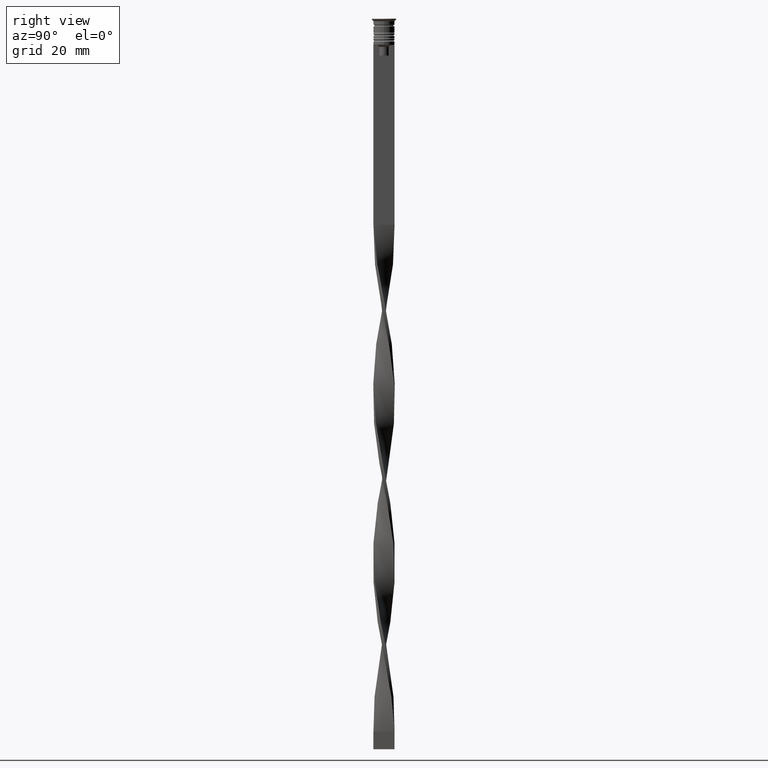
[diagram: clean part render]
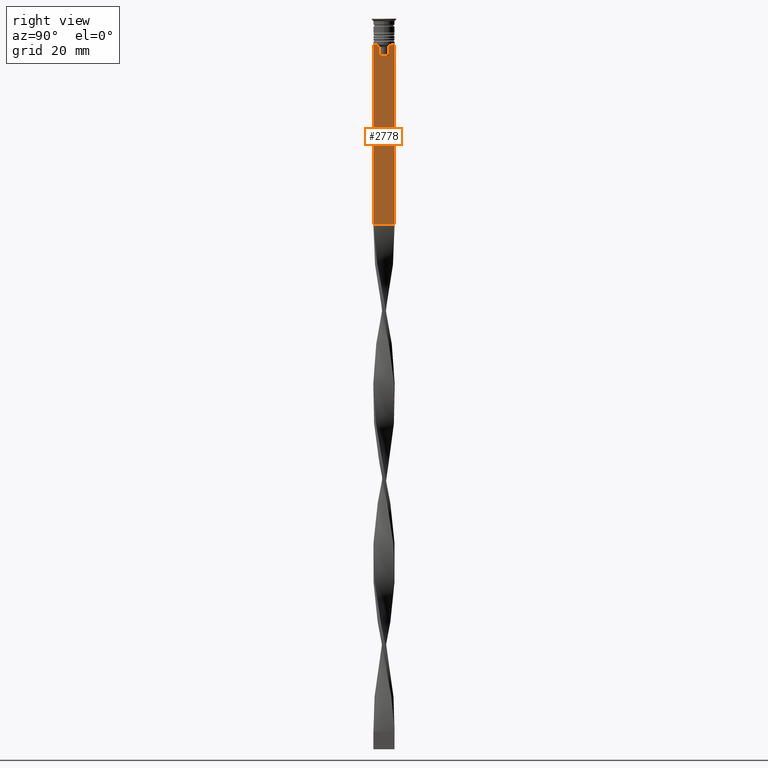
[diagram: same view with one face highlighted and labeled with its STEP entity id]
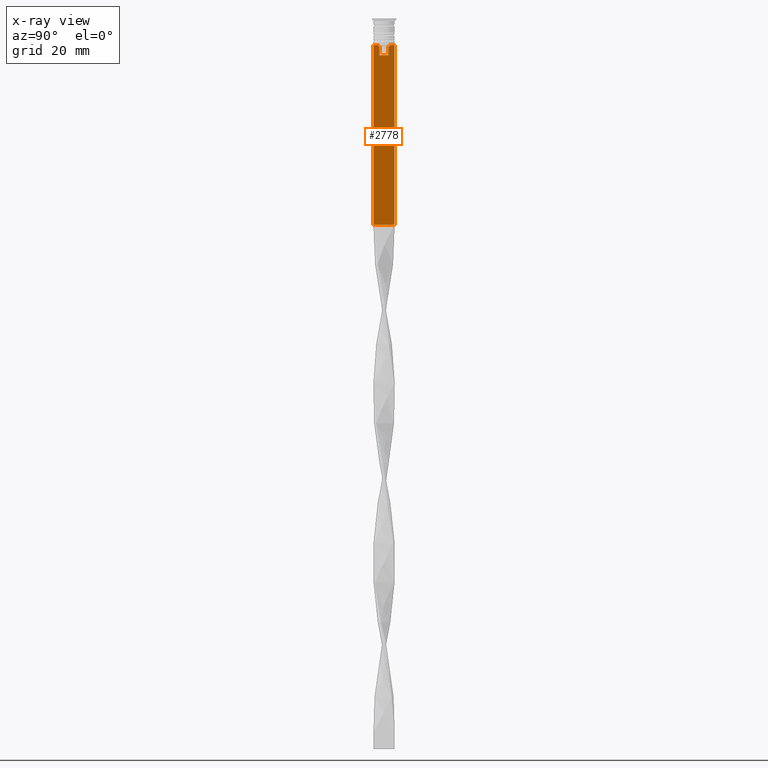
[diagram: x-ray of the same camera — body ghosted, the highlighted face saturated]
A machine part, right view. The second image highlights one B-rep face of the part: STEP entity #2778.
The next image is the same camera in x-ray: the body ghosted, the highlighted face saturated — about 0% of this face is hidden behind the body in this view.
In plain terms, the highlighted planar face has unit normal (-1, 0, 0).
Its self-contained STEP definition (entity closure, byte-faithful):
#39 = ORIENTED_EDGE ( 'NONE', *, *, #2444, .T. ) ;
#52 = DIRECTION ( 'NONE',  ( 0.000000000000000000, 0.000000000000000000, 1.000000000000000000 ) ) ;
#113 = EDGE_CURVE ( 'NONE', #428, #2605, #3611, .T. ) ;
#122 = ORIENTED_EDGE ( 'NONE', *, *, #1128, .F. ) ;
#131 = EDGE_CURVE ( 'NONE', #2325, #3174, #1012, .T. ) ;
#177 = CARTESIAN_POINT ( 'NONE',  ( 0.4999999999999998890, 1.833030277982335754, -7.500000000000000000 ) ) ;
#192 = CARTESIAN_POINT ( 'NONE',  ( 0.4999999999999998890, -1.307669683062199439, -8.000000000000000000 ) ) ;
#223 = CARTESIAN_POINT ( 'NONE',  ( 0.4999999999999998890, -3.000000000000000000, -7.500000000000000000 ) ) ;
#231 = CARTESIAN_POINT ( 'NONE',  ( 0.4999999999999998890, -3.000000000000000000, -7.500000000000000000 ) ) ;
#264 = DIRECTION ( 'NONE',  ( 0.000000000000000000, -1.000000000000000000, 0.000000000000000000 ) ) ;
#266 = EDGE_CURVE ( 'NONE', #3516, #2512, #2772, .T. ) ;
#270 = ORIENTED_EDGE ( 'NONE', *, *, #1379, .T. ) ;
#277 = CARTESIAN_POINT ( 'NONE',  ( 0.4999999999999998890, 1.399999999999997691, -10.49999999999999822 ) ) ;
#363 = LINE ( 'NONE', #2715, #3352 ) ;
#396 = VECTOR ( 'NONE', #1098, 1000.000000000000000 ) ;
#410 = CARTESIAN_POINT ( 'NONE',  ( 0.4999999999999998890, -1.307669683062199439, -10.49999999999999822 ) ) ;
#411 = EDGE_CURVE ( 'NONE', #2961, #1949, #1431, .T. ) ;
#416 = CARTESIAN_POINT ( 'NONE',  ( 0.4999999999999998890, 2.856571371417139904, -7.500000000000000000 ) ) ;
#428 = VERTEX_POINT ( 'NONE', #2236 ) ;
#530 = ORIENTED_EDGE ( 'NONE', *, *, #3616, .T. ) ;
#537 = ORIENTED_EDGE ( 'NONE', *, *, #1868, .T. ) ;
#560 = CARTESIAN_POINT ( 'NONE',  ( 0.4999999999999998890, 1.307669683062199439, -10.49999999999999822 ) ) ;
#651 = DIRECTION ( 'NONE',  ( 0.000000000000000000, -1.000000000000000000, 0.000000000000000000 ) ) ;
#722 = CARTESIAN_POINT ( 'NONE',  ( 0.4999999999999998890, -3.000000000000000000, -1.417237469701779329 ) ) ;
#777 = CARTESIAN_POINT ( 'NONE',  ( 0.4999999999999998890, 1.484355510416485835, -7.834966642958598015 ) ) ;
#855 = LINE ( 'NONE', #277, #2916 ) ;
#864 = VECTOR ( 'NONE', #264, 1000.000000000000000 ) ;
#916 = VERTEX_POINT ( 'NONE', #1748 ) ;
#993 = VECTOR ( 'NONE', #1862, 1000.000000000000000 ) ;
#1012 = LINE ( 'NONE', #3577, #993 ) ;
#1066 = CARTESIAN_POINT ( 'NONE',  ( 0.4999999999999998890, 1.659046061654642967, -7.667851756010362507 ) ) ;
#1098 = DIRECTION ( 'NONE',  ( 0.000000000000000000, -1.000000000000000000, 0.000000000000000000 ) ) ;
#1118 = VECTOR ( 'NONE', #2178, 1000.000000000000000 ) ;
#1124 = CARTESIAN_POINT ( 'NONE',  ( 0.4999999999999998890, -1.659011726860414093, -7.667884880598472286 ) ) ;
#1128 = EDGE_CURVE ( 'NONE', #3516, #2709, #363, .T. ) ;
#1207 = PLANE ( 'NONE',  #1604 ) ;
#1217 = ORIENTED_EDGE ( 'NONE', *, *, #131, .T. ) ;
#1233 = DIRECTION ( 'NONE',  ( 0.000000000000000000, 0.000000000000000000, -1.000000000000000000 ) ) ;
#1251 = CARTESIAN_POINT ( 'NONE',  ( 0.4999999999999998890, -3.000000000000000000, -7.500000000000000000 ) ) ;
#1255 = CARTESIAN_POINT ( 'NONE',  ( 0.4999999999999998890, -3.000000000000000000, -7.500000000000000000 ) ) ;
#1305 = LINE ( 'NONE', #722, #3161 ) ;
#1306 = LINE ( 'NONE', #2453, #1118 ) ;
#1370 = ORIENTED_EDGE ( 'NONE', *, *, #3037, .T. ) ;
#1379 = EDGE_CURVE ( 'NONE', #1949, #2877, #1306, .T. ) ;
#1431 = B_SPLINE_CURVE_WITH_KNOTS ( 'NONE', 3,
 ( #3354, #1066, #777, #2837 ),
 .UNSPECIFIED., .F., .F.,
 ( 4, 4 ),
 ( 0.003278537493109848298, 0.004003794023484941178 ),
 .UNSPECIFIED. ) ;
#1518 = LINE ( 'NONE', #1251, #3585 ) ;
#1536 = VECTOR ( 'NONE', #2130, 1000.000000000000000 ) ;
#1589 = CARTESIAN_POINT ( 'NONE',  ( 0.4999999999999998890, -3.000000000000000000, -58.50000000000000000 ) ) ;
#1604 = AXIS2_PLACEMENT_3D ( 'NONE', #3205, #3433, #52 ) ;
#1738 = FACE_OUTER_BOUND ( 'NONE', #3149, .T. ) ;
#1748 = CARTESIAN_POINT ( 'NONE',  ( 0.4999999999999998890, -3.000000000000000000, -58.50000000000000000 ) ) ;
#1791 = ORIENTED_EDGE ( 'NONE', *, *, #411, .T. ) ;
#1819 = LINE ( 'NONE', #1589, #2733 ) ;
#1862 = DIRECTION ( 'NONE',  ( -0.000000000000000000, -0.000000000000000000, 1.000000000000000000 ) ) ;
#1868 = EDGE_CURVE ( 'NONE', #2877, #2325, #855, .T. ) ;
#1949 = VERTEX_POINT ( 'NONE', #3207 ) ;
#1976 = CARTESIAN_POINT ( 'NONE',  ( 0.4999999999999998890, 3.000000000000000000, -58.50000000000000000 ) ) ;
#2014 = DIRECTION ( 'NONE',  ( 0.000000000000000000, -1.000000000000000000, 0.000000000000000000 ) ) ;
#2130 = DIRECTION ( 'NONE',  ( 0.000000000000000000, -1.000000000000000000, 0.000000000000000000 ) ) ;
#2177 = DIRECTION ( 'NONE',  ( 0.000000000000000000, 0.000000000000000000, -1.000000000000000000 ) ) ;
#2178 = DIRECTION ( 'NONE',  ( 0.000000000000000000, 0.000000000000000000, -1.000000000000000000 ) ) ;
#2196 = CARTESIAN_POINT ( 'NONE',  ( 0.4999999999999998890, 3.000000000000000000, -7.500000000000000000 ) ) ;
#2236 = CARTESIAN_POINT ( 'NONE',  ( 0.4999999999999998890, -2.856571371417139904, -7.500000000000000000 ) ) ;
#2321 = VERTEX_POINT ( 'NONE', #3567 ) ;
#2325 = VERTEX_POINT ( 'NONE', #410 ) ;
#2367 = ORIENTED_EDGE ( 'NONE', *, *, #2412, .T. ) ;
#2398 = EDGE_CURVE ( 'NONE', #2321, #428, #1518, .T. ) ;
#2412 = EDGE_CURVE ( 'NONE', #2605, #916, #1305, .T. ) ;
#2444 = EDGE_CURVE ( 'NONE', #916, #2709, #1819, .T. ) ;
#2453 = CARTESIAN_POINT ( 'NONE',  ( 0.4999999999999998890, 1.307669683062199439, 0.000000000000000000 ) ) ;
#2493 = CARTESIAN_POINT ( 'NONE',  ( 0.4999999999999998890, -1.484307477388859153, -7.835011508197190722 ) ) ;
#2512 = VERTEX_POINT ( 'NONE', #416 ) ;
#2584 = CARTESIAN_POINT ( 'NONE',  ( 0.4999999999999998890, -1.833030277982335754, -7.500000000000000000 ) ) ;
#2605 = VERTEX_POINT ( 'NONE', #223 ) ;
#2709 = VERTEX_POINT ( 'NONE', #1976 ) ;
#2715 = CARTESIAN_POINT ( 'NONE',  ( 0.4999999999999998890, 3.000000000000000000, -1.417237469701779329 ) ) ;
#2733 = VECTOR ( 'NONE', #2986, 1000.000000000000000 ) ;
#2772 = LINE ( 'NONE', #3647, #864 ) ;
#2778 = ADVANCED_FACE ( 'NONE', ( #1738 ), #1207, .F. ) ;
#2814 = ORIENTED_EDGE ( 'NONE', *, *, #2398, .T. ) ;
#2837 = CARTESIAN_POINT ( 'NONE',  ( 0.4999999999999998890, 1.307669683062199439, -8.000000000000000000 ) ) ;
#2877 = VERTEX_POINT ( 'NONE', #560 ) ;
#2916 = VECTOR ( 'NONE', #2014, 1000.000000000000000 ) ;
#2934 = B_SPLINE_CURVE_WITH_KNOTS ( 'NONE', 3,
 ( #192, #2493, #1124, #2584 ),
 .UNSPECIFIED., .F., .F.,
 ( 4, 4 ),
 ( 0.007225659348748082224, 0.007950554640278054835 ),
 .UNSPECIFIED. ) ;
#2961 = VERTEX_POINT ( 'NONE', #177 ) ;
#2986 = DIRECTION ( 'NONE',  ( 0.000000000000000000, 1.000000000000000000, 0.000000000000000000 ) ) ;
#3037 = EDGE_CURVE ( 'NONE', #3174, #2321, #2934, .T. ) ;
#3096 = LINE ( 'NONE', #231, #396 ) ;
#3149 = EDGE_LOOP ( 'NONE', ( #530, #1791, #270, #537, #1217, #1370, #2814, #3208, #2367, #39, #122, #3409 ) ) ;
#3161 = VECTOR ( 'NONE', #2177, 1000.000000000000000 ) ;
#3174 = VERTEX_POINT ( 'NONE', #3201 ) ;
#3201 = CARTESIAN_POINT ( 'NONE',  ( 0.4999999999999998890, -1.307669683062199439, -8.000000000000000000 ) ) ;
#3205 = CARTESIAN_POINT ( 'NONE',  ( 0.4999999999999998890, -3.000000000000000000, -1.417237469701779329 ) ) ;
#3207 = CARTESIAN_POINT ( 'NONE',  ( 0.4999999999999998890, 1.307669683062199439, -8.000000000000000000 ) ) ;
#3208 = ORIENTED_EDGE ( 'NONE', *, *, #113, .T. ) ;
#3352 = VECTOR ( 'NONE', #1233, 1000.000000000000000 ) ;
#3354 = CARTESIAN_POINT ( 'NONE',  ( 0.4999999999999998890, 1.833030277982335754, -7.500000000000000000 ) ) ;
#3409 = ORIENTED_EDGE ( 'NONE', *, *, #266, .T. ) ;
#3433 = DIRECTION ( 'NONE',  ( -1.000000000000000000, 0.000000000000000000, 0.000000000000000000 ) ) ;
#3516 = VERTEX_POINT ( 'NONE', #2196 ) ;
#3567 = CARTESIAN_POINT ( 'NONE',  ( 0.4999999999999998890, -1.833030277982335754, -7.500000000000000000 ) ) ;
#3577 = CARTESIAN_POINT ( 'NONE',  ( 0.4999999999999998890, -1.307669683062199439, 0.000000000000000000 ) ) ;
#3585 = VECTOR ( 'NONE', #651, 1000.000000000000000 ) ;
#3611 = LINE ( 'NONE', #1255, #1536 ) ;
#3616 = EDGE_CURVE ( 'NONE', #2512, #2961, #3096, .T. ) ;
#3647 = CARTESIAN_POINT ( 'NONE',  ( 0.4999999999999998890, -3.000000000000000000, -7.500000000000000000 ) ) ;